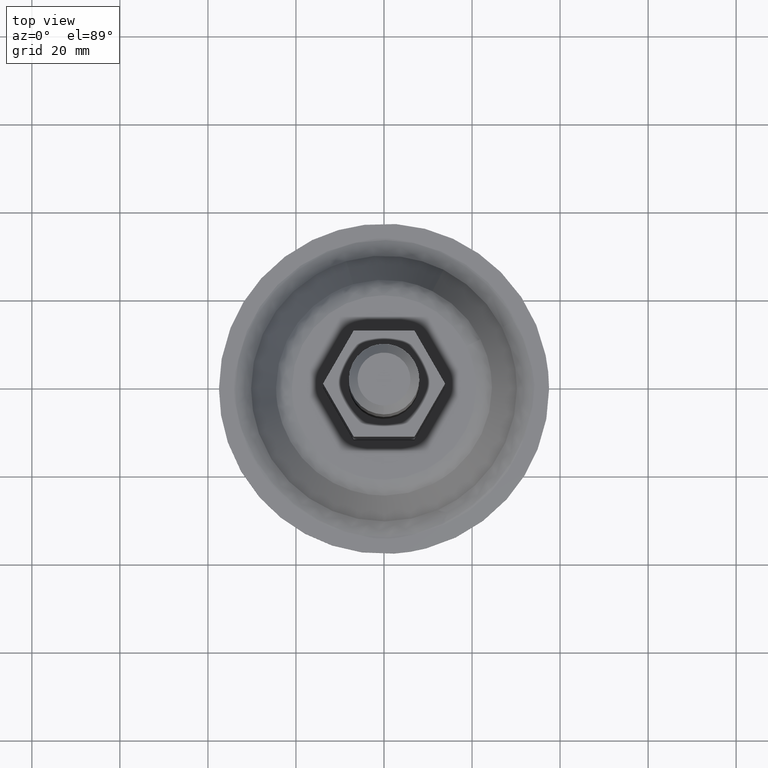
[diagram: clean part render]
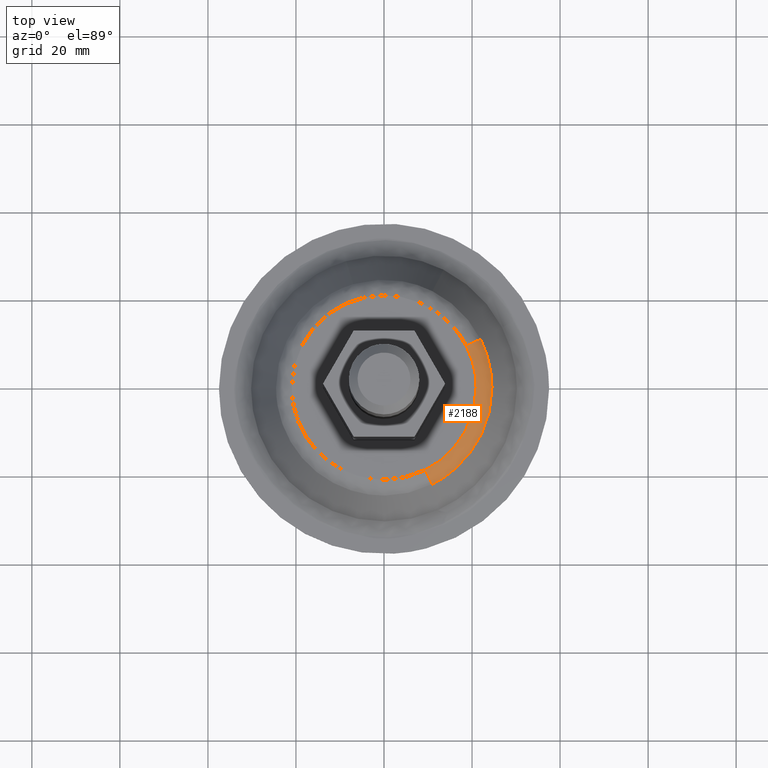
[diagram: same view with one face highlighted and labeled with its STEP entity id]
A machine part, top view. The second image highlights one B-rep face of the part: STEP entity #2188.
In plain terms, the highlighted face is a freeform B-spline surface patch.
Its self-contained STEP definition (entity closure, byte-faithful):
#1375=CARTESIAN_POINT('',(21.925249910988700,10.998499066017921,15.762949531655090));
#1376=VERTEX_POINT('',#1375);
#1390=CARTESIAN_POINT('',(24.529238988803549,0.0,15.762949531433700));
#1391=VERTEX_POINT('',#1390);
#1392=CARTESIAN_POINT('',(21.925249910988700,10.998499066017919,15.762949531655089));
#1393=CARTESIAN_POINT('',(24.529238988803549,5.807507917949247,15.762949531433705));
#1394=CARTESIAN_POINT('',(24.529238988803549,0.0,15.762949531433700));
#1402=(BOUNDED_CURVE()B_SPLINE_CURVE(2,(#1392,#1393,#1394),.UNSPECIFIED.,.F.,.U.)B_SPLINE_CURVE_WITH_KNOTS((3,3),(0.423769062115367,0.500000000000000),.UNSPECIFIED.)CURVE()GEOMETRIC_REPRESENTATION_ITEM()RATIONAL_B_SPLINE_CURVE((0.875845342762399,0.910689900919206,1.0))REPRESENTATION_ITEM(''));
#1403=EDGE_CURVE('',#1376,#1391,#1402,.T.);
#1405=CARTESIAN_POINT('',(10.998499066031020,-21.925249911040261,15.762949531549269));
#1406=VERTEX_POINT('',#1405);
#1407=CARTESIAN_POINT('',(24.529238988803549,0.0,15.762949531433700));
#1408=CARTESIAN_POINT('',(24.529238988803549,-15.137740942795240,15.762949531433705));
#1409=CARTESIAN_POINT('',(10.998499066031023,-21.925249911040261,15.762949531549273));
#1417=(BOUNDED_CURVE()B_SPLINE_CURVE(2,(#1407,#1408,#1409),.UNSPECIFIED.,.F.,.U.)B_SPLINE_CURVE_WITH_KNOTS((3,3),(0.500000000000000,0.673769062115510),.UNSPECIFIED.)CURVE()GEOMETRIC_REPRESENTATION_ITEM()RATIONAL_B_SPLINE_CURVE((1.0,0.796416880267174,0.875845342762530))REPRESENTATION_ITEM(''));
#1418=EDGE_CURVE('',#1391,#1406,#1417,.T.);
#2068=CARTESIAN_POINT('',(9.388559230759849,-18.715872611240460,18.000000000000099));
#2069=VERTEX_POINT('',#2068);
#2087=CARTESIAN_POINT('',(18.715872611390200,9.388559230847733,18.000000000000099));
#2088=VERTEX_POINT('',#2087);
#2104=CARTESIAN_POINT('',(18.715872611390196,9.388559230847733,18.000000000000103));
#2105=CARTESIAN_POINT('',(20.943466160952035,10.506000795652591,17.999999995698285));
#2106=CARTESIAN_POINT('',(21.925249910988700,10.998499066017919,15.762949531655099));
#2114=(BOUNDED_CURVE()B_SPLINE_CURVE(2,(#2104,#2105,#2106),.UNSPECIFIED.,.F.,.U.)B_SPLINE_CURVE_WITH_KNOTS((3,3),(-1.657824828910443,-0.347170207601308),.UNSPECIFIED.)CURVE()GEOMETRIC_REPRESENTATION_ITEM()RATIONAL_B_SPLINE_CURVE((0.909224137540618,0.771255055223473,0.908176502101244))REPRESENTATION_ITEM(''));
#2115=EDGE_CURVE('',#2088,#1376,#2114,.T.);
#2121=CARTESIAN_POINT('',(9.388559230759849,-18.715872611240457,18.000000000000103));
#2122=CARTESIAN_POINT('',(10.506000795678444,-20.943466161003563,17.999999995914166));
#2123=CARTESIAN_POINT('',(10.998499066031023,-21.925249911040257,15.762949531549276));
#2131=(BOUNDED_CURVE()B_SPLINE_CURVE(2,(#2121,#2122,#2123),.UNSPECIFIED.,.F.,.U.)B_SPLINE_CURVE_WITH_KNOTS((3,3),(-1.657824829017855,-0.347170207528303),.UNSPECIFIED.)CURVE()GEOMETRIC_REPRESENTATION_ITEM()RATIONAL_B_SPLINE_CURVE((0.909224137563232,0.771255055204567,0.908176502116497))REPRESENTATION_ITEM(''));
#2132=EDGE_CURVE('',#2069,#1406,#2131,.T.);
#2137=CARTESIAN_POINT('',(18.528652608911848,9.294642899871809,17.994512284984971));
#2138=CARTESIAN_POINT('',(27.823295508783655,-9.234009709040036,17.994512284984971));
#2139=CARTESIAN_POINT('',(9.294642899871809,-18.528652608911848,17.994512284984971));
#2140=CARTESIAN_POINT('',(21.022028934068988,10.545410726679879,18.140782316382250));
#2141=CARTESIAN_POINT('',(31.567439660748860,-10.476618207389112,18.140782316382243));
#2142=CARTESIAN_POINT('',(10.545410726679879,-21.022028934068988,18.140782316382250));
#2143=CARTESIAN_POINT('',(22.003449988207599,11.037727055620422,15.572285105118571));
#2144=CARTESIAN_POINT('',(33.041177043828014,-10.965722932587171,15.572285105118565));
#2145=CARTESIAN_POINT('',(11.037727055620422,-22.003449988207585,15.572285105118571));
#2153=(BOUNDED_SURFACE()B_SPLINE_SURFACE(2,2,((#2137,#2140,#2143),(#2138,#2141,#2144),(#2139,#2142,#2145)),.UNSPECIFIED.,.F.,.F.,.U.)B_SPLINE_SURFACE_WITH_KNOTS((3,3),(3,3),(0.0,40.786328124221413),(0.0,5.033719259317198),.UNSPECIFIED.)GEOMETRIC_REPRESENTATION_ITEM()RATIONAL_B_SPLINE_SURFACE(((0.923693141034011,0.756838403288658,0.922540802781788),(0.653149683760651,0.535165567227809,0.652334857568283),(0.923693141034011,0.756838403288658,0.922540802781788)))REPRESENTATION_ITEM('')SURFACE());
#2154=CARTESIAN_POINT('',(20.938694608125552,0.0,18.0));
#2155=VERTEX_POINT('',#2154);
#2156=CARTESIAN_POINT('',(20.938694608125552,0.0,18.0));
#2157=CARTESIAN_POINT('',(20.938694608125552,-12.921906578382314,18.0));
#2158=CARTESIAN_POINT('',(9.388559230759849,-18.715872611240453,18.000000000000096));
#2166=(BOUNDED_CURVE()B_SPLINE_CURVE(2,(#2156,#2157,#2158),.UNSPECIFIED.,.F.,.U.)B_SPLINE_CURVE_WITH_KNOTS((3,3),(0.500000000000000,0.673769062112901),.UNSPECIFIED.)CURVE()GEOMETRIC_REPRESENTATION_ITEM()RATIONAL_B_SPLINE_CURVE((1.0,0.796416880270231,0.875845342760145))REPRESENTATION_ITEM(''));
#2167=EDGE_CURVE('',#2155,#2069,#2166,.T.);
#2168=ORIENTED_EDGE('',*,*,#2167,.T.);
#2169=ORIENTED_EDGE('',*,*,#2132,.T.);
#2170=ORIENTED_EDGE('',*,*,#1418,.F.);
#2171=ORIENTED_EDGE('',*,*,#1403,.F.);
#2172=ORIENTED_EDGE('',*,*,#2115,.F.);
#2173=CARTESIAN_POINT('',(18.715872611390189,9.388559230847733,18.000000000000103));
#2174=CARTESIAN_POINT('',(20.938694608125545,4.957415710627299,18.000000000000007));
#2175=CARTESIAN_POINT('',(20.938694608125552,0.0,18.0));
#2183=(BOUNDED_CURVE()B_SPLINE_CURVE(2,(#2173,#2174,#2175),.UNSPECIFIED.,.F.,.U.)B_SPLINE_CURVE_WITH_KNOTS((3,3),(0.423769062112731,0.500000000000000),.UNSPECIFIED.)CURVE()GEOMETRIC_REPRESENTATION_ITEM()RATIONAL_B_SPLINE_CURVE((0.875845342759990,0.910689900916118,1.0))REPRESENTATION_ITEM(''));
#2184=EDGE_CURVE('',#2088,#2155,#2183,.T.);
#2185=ORIENTED_EDGE('',*,*,#2184,.T.);
#2186=EDGE_LOOP('',(#2168,#2169,#2170,#2171,#2172,#2185));
#2187=FACE_OUTER_BOUND('',#2186,.T.);
#2188=ADVANCED_FACE('',(#2187),#2153,.T.);